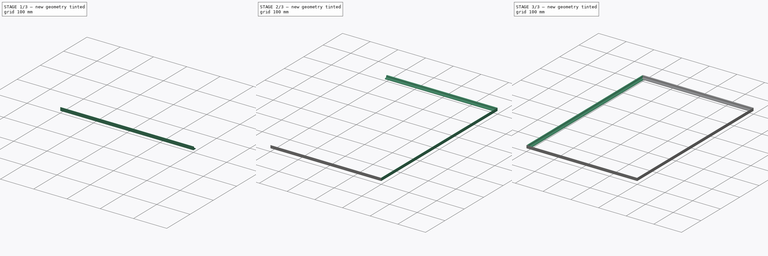
[diagram: build sequence overview — one tinted view per stage of 3, left to right]
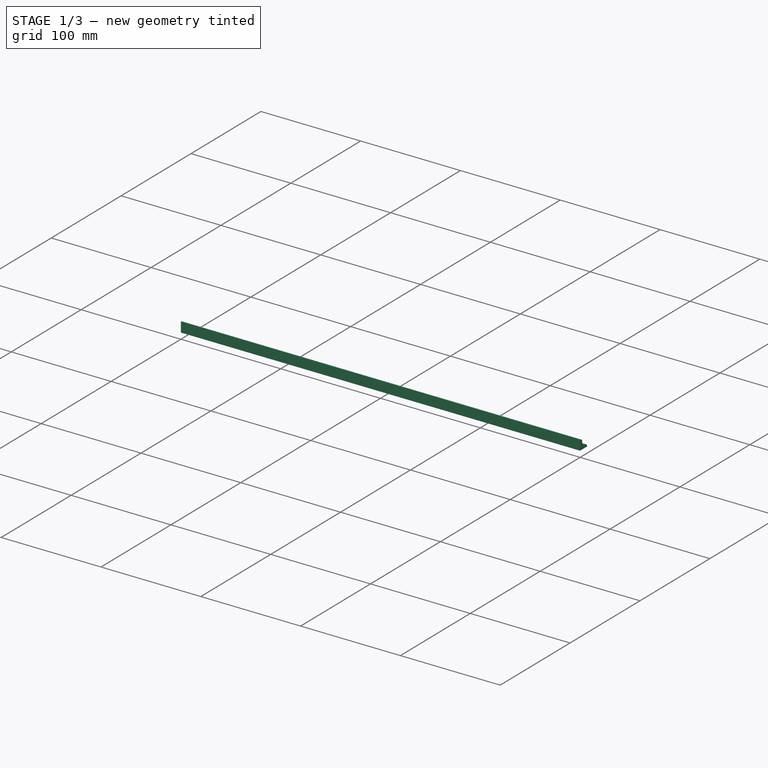
[diagram: stage 1 of 3 — iso view after this stage's code; geometry added in this stage tinted green]
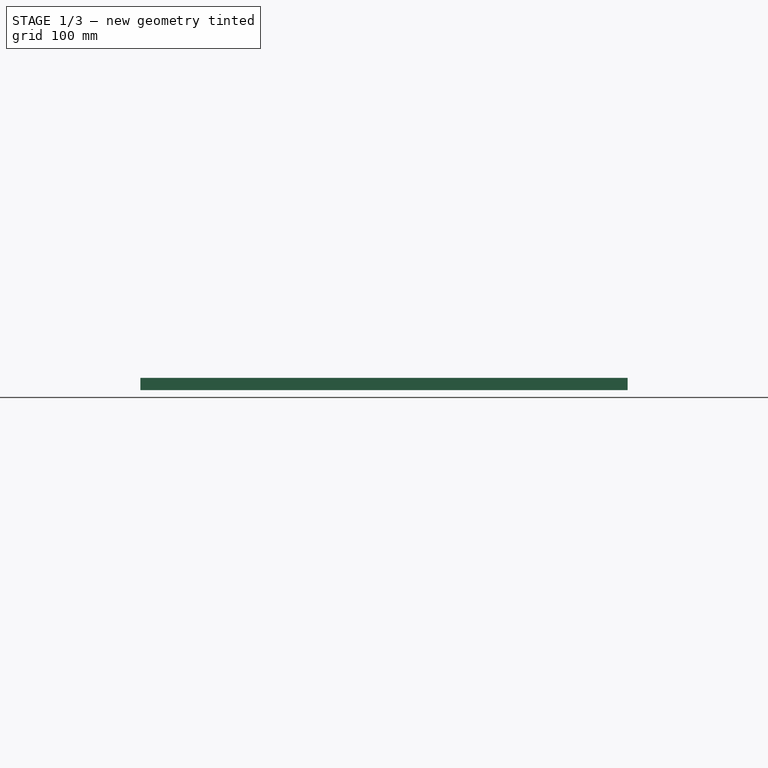
[diagram: stage 1 of 3 — front view after this stage's code; geometry added in this stage tinted green]
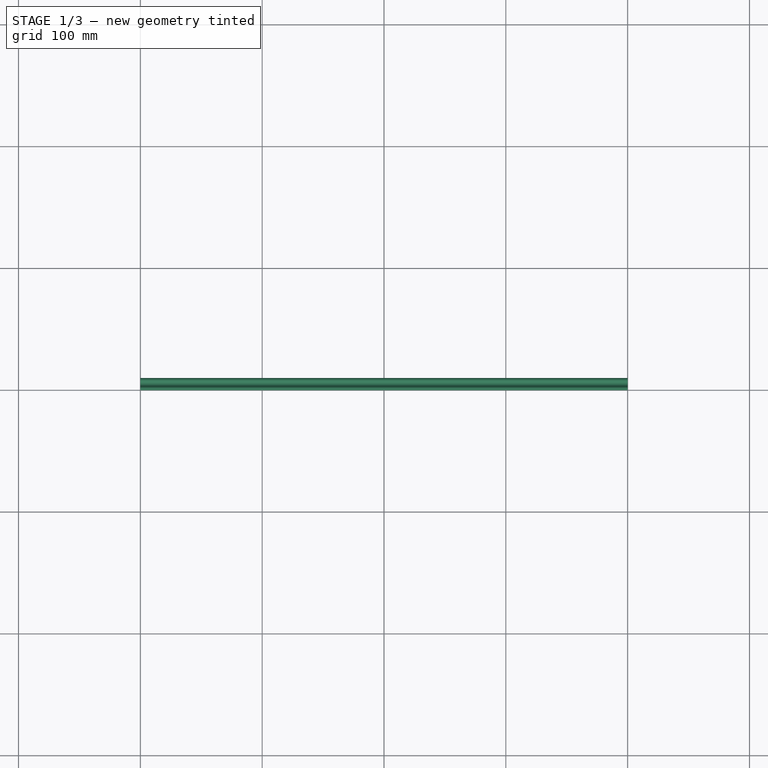
[diagram: stage 1 of 3 — top view after this stage's code; geometry added in this stage tinted green]
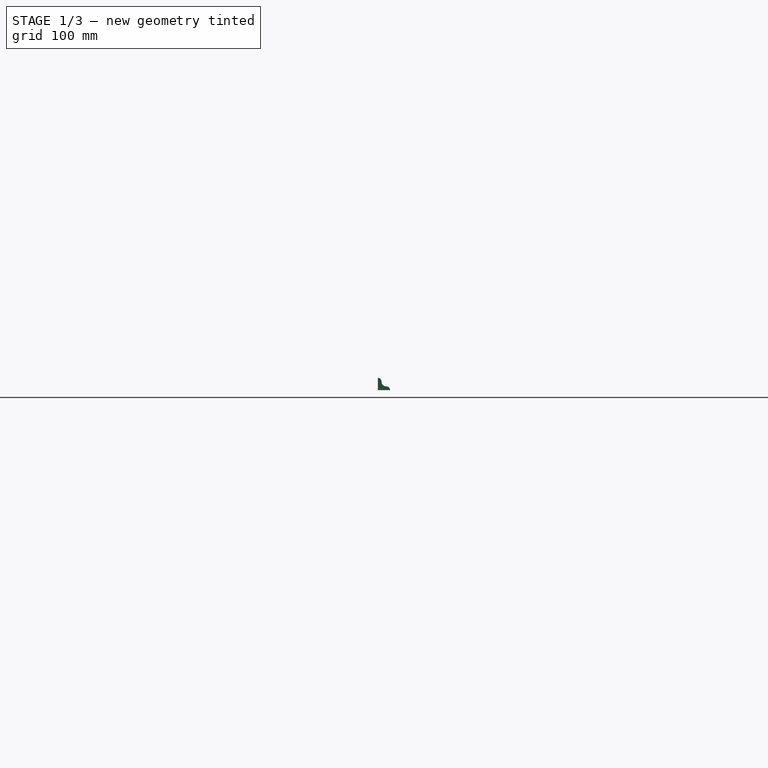
[diagram: stage 1 of 3 — right view after this stage's code; geometry added in this stage tinted green]
FCSTD DOCUMENT  (FreeCAD 0.18.3R)
Label: CuadroCamiseta
License: All rights reserved
LicenseURL: http://en.wikipedia.org/wiki/All_rights_reserved
objects: Part::FeaturePython×4, Sketcher::SketchObject×1, PartDesign::Pad×1, PartDesign::Body×1, Part::MultiFuse×1
note: 9 computed .brp shape members not serialized (recipe doc carries the construction recipe); baked Part::Feature solids carry a one-line shape summary decoded from their .brp

FEATURE [Sketcher::SketchObject] Sketch
  MapMode = 5
  Placement = pos=(0,0,0) rot=(1,0,0;1.5708rad)
  Support = -> [XZ_Plane]
  sketch-geometry (5):
    g0: LineSegment StartX=0 StartY=4e-16 StartZ=0 EndX=10 EndY=0 EndZ=0
    g1: LineSegment StartX=10 StartY=0 StartZ=0 EndX=10 EndY=10 EndZ=0
    g2: ArcOfCircle CenterX=10 CenterY=7 CenterZ=0 NormalX=0 NormalY=0 NormalZ=1 AngleXU=0 Radius=3 StartAngle=1.5708 EndAngle=3.14159
    g3: ArcOfCircle CenterX=3 CenterY=0 CenterZ=0 NormalX=0 NormalY=0 NormalZ=1 AngleXU=0 Radius=3 StartAngle=1.5708 EndAngle=3.14159
    g4: ArcOfCircle CenterX=3 CenterY=7 CenterZ=0 NormalX=0 NormalY=0 NormalZ=1 AngleXU=0 Radius=4 StartAngle=4.71239 EndAngle=6.28319
  constraints (15):
    c: Coincident(g0,g-1)
    c: PointOnObject(g0,g-1)
    c: Vertical(g1)
    c: PointOnObject(g2,g1)
    c: Coincident(g2,g1)
    c: PointOnObject(g3,g0)
    c: Coincident(g3,g0)
    c: Equal(g2,g3)
    c: Equal(g0,g1)
    c: DistanceX(g0,g0) = 10
    c: Coincident(g1,g0)
    c: Tangent(g4,g2) = 1.5708
    c: Tangent(g4,g3) = 1.5708
    c: Angle(g4) = 1.5708
    c: DistanceX(g0,g3) = 3
FEATURE [PartDesign::Pad] Pad
  Length = 1000
  Length2 = 100
  Placement = pos=(0,0,0) rot=(1,0,0;1.5708rad)
  Profile = -> Sketch
  Reversed = true
  Type = 0
FEATURE [Part::FeaturePython] Clone003  label="Pad004"  # Draft clone (typed FeaturePython)
  AttacherType = Attacher::AttachEngine3D
  Fuse = false
  Objects = -> [Pad]
  Placement = pos=(0,10,0) rot=(-0.57735,0.57735,0.57735;4.18879rad)
  Scale = (1,1,0.4)
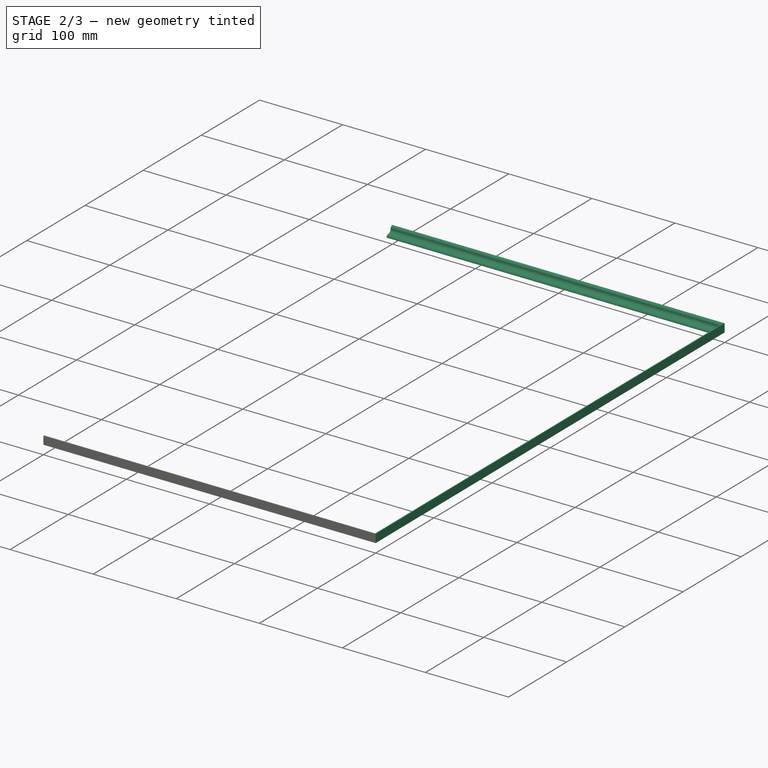
[diagram: stage 2 of 3 — iso view after this stage's code; geometry added in this stage tinted green]
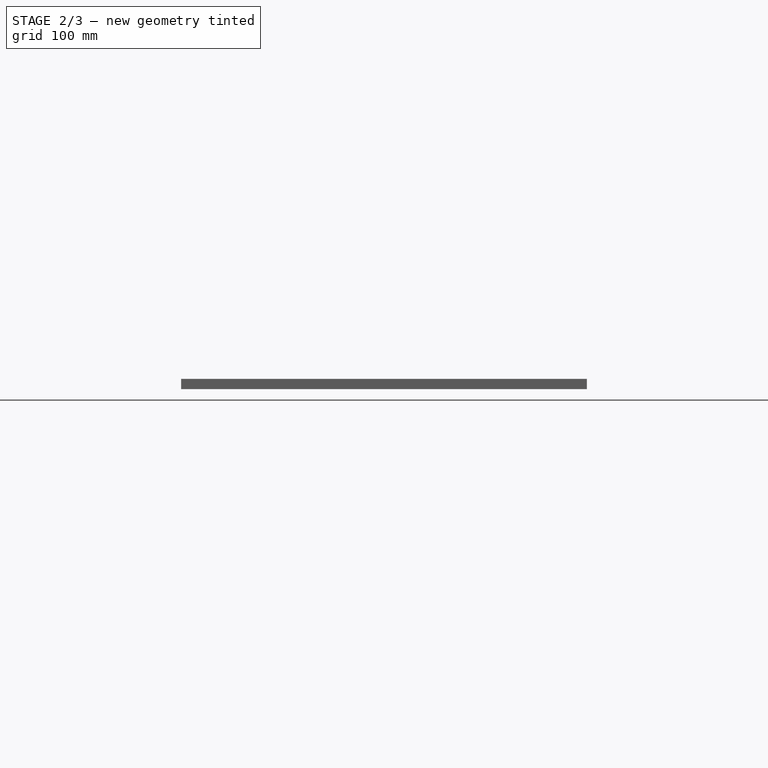
[diagram: stage 2 of 3 — front view after this stage's code; geometry added in this stage tinted green]
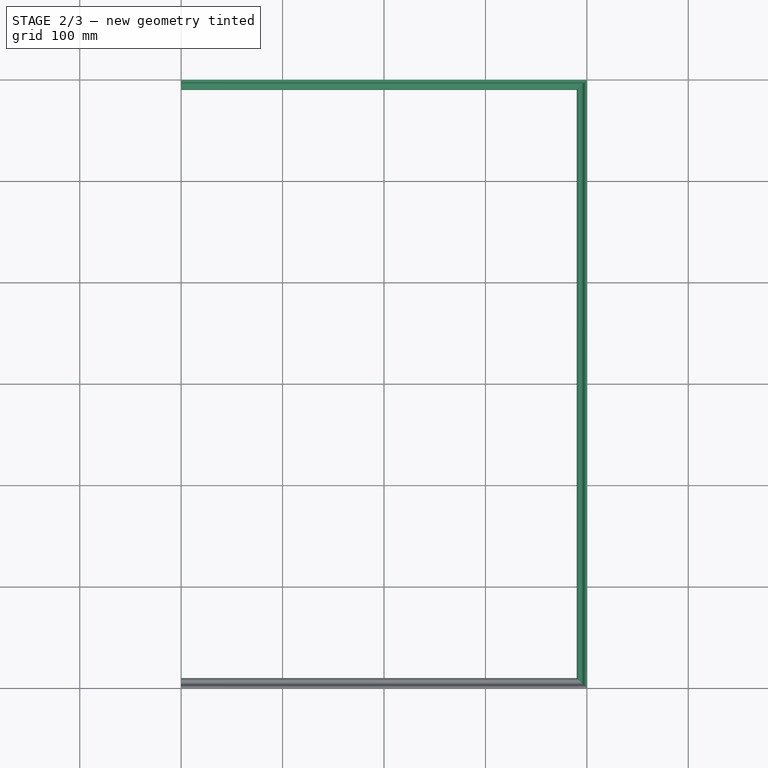
[diagram: stage 2 of 3 — top view after this stage's code; geometry added in this stage tinted green]
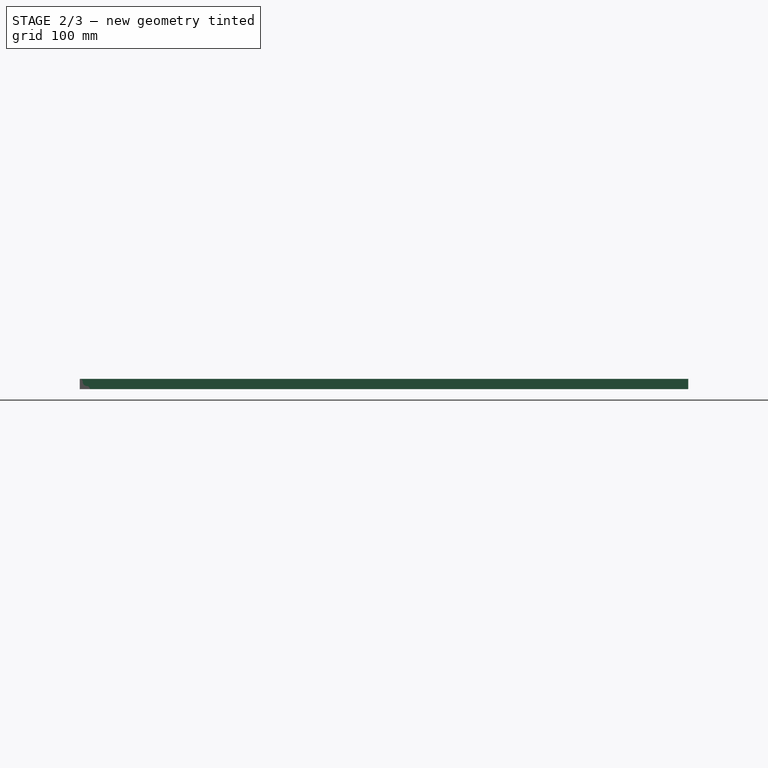
[diagram: stage 2 of 3 — right view after this stage's code; geometry added in this stage tinted green]
FEATURE [Part::FeaturePython] Clone001  label="Pad002"  # Draft clone (typed FeaturePython)
  AttacherType = Attacher::AttachEngine3D
  Fuse = false
  Objects = -> [Pad]
  Placement = pos=(400,600,10) rot=(0.57735,-0.57735,-0.57735;4.18879rad)
  Scale = (1,1,0.6)
FEATURE [Part::FeaturePython] Clone002  label="Pad003"  # Draft clone (typed FeaturePython)
  AttacherType = Attacher::AttachEngine3D
  Fuse = false
  Objects = -> [Pad]
  Placement = pos=(400,590,0) rot=(0.57735,0.57735,0.57735;2.0944rad)
  Scale = (1,1,0.4)
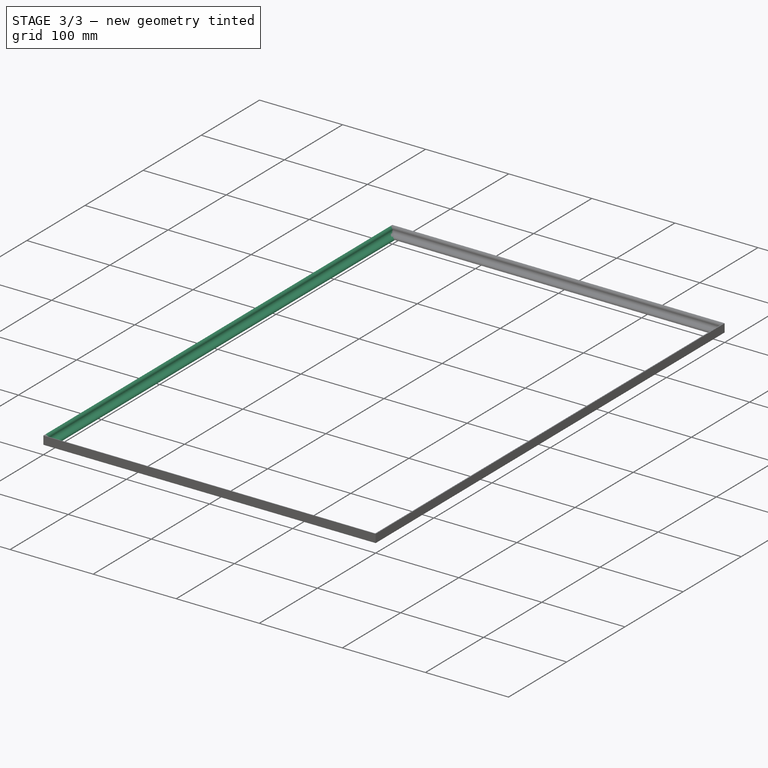
[diagram: stage 3 of 3 — iso view after this stage's code; geometry added in this stage tinted green]
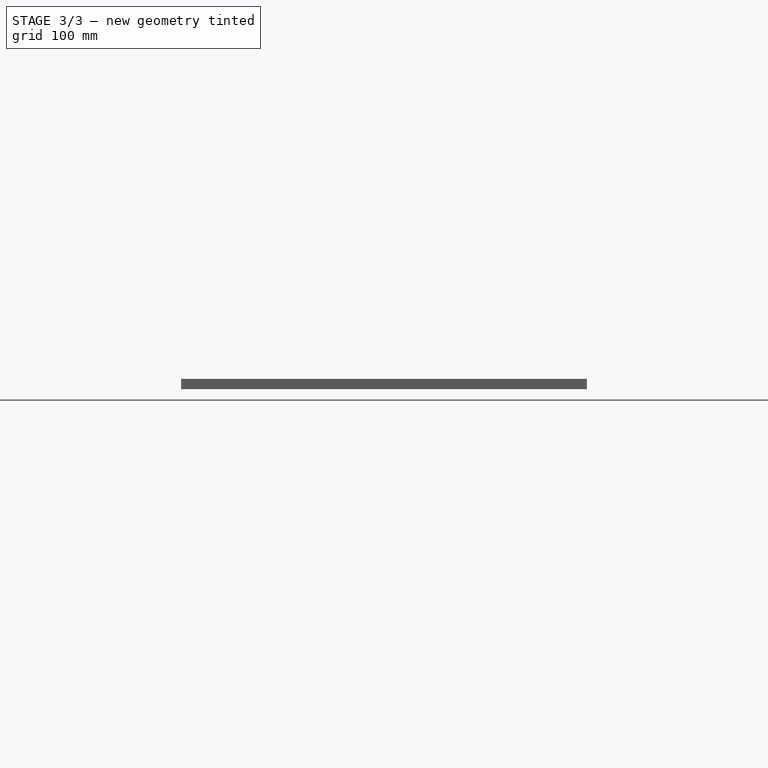
[diagram: stage 3 of 3 — front view after this stage's code; geometry added in this stage tinted green]
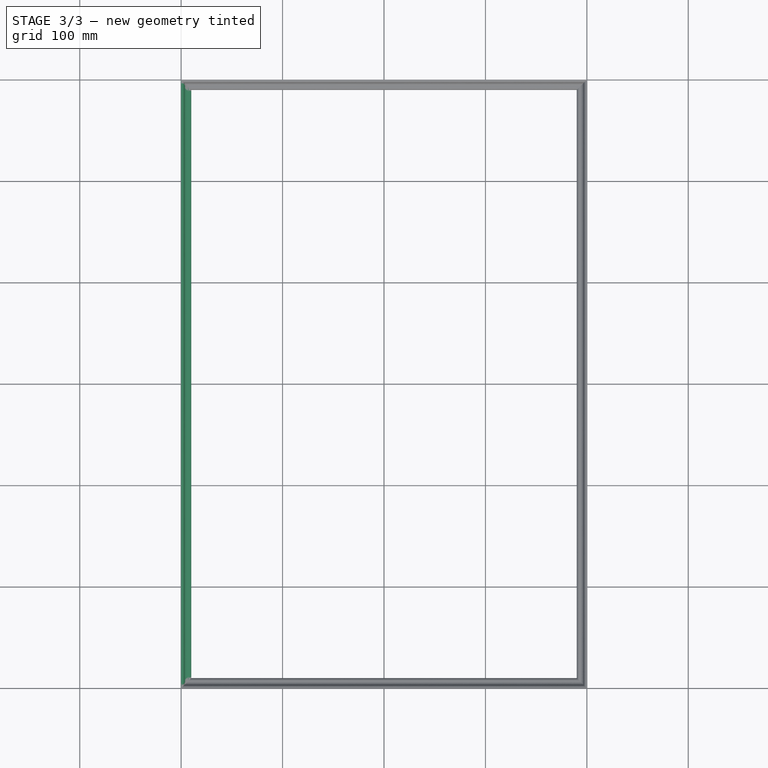
[diagram: stage 3 of 3 — top view after this stage's code; geometry added in this stage tinted green]
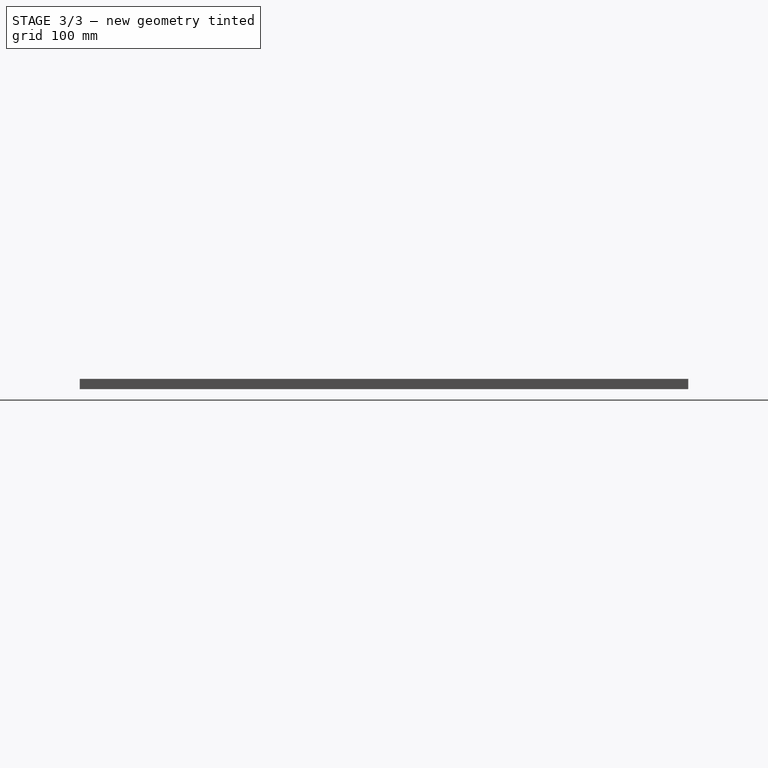
[diagram: stage 3 of 3 — right view after this stage's code; geometry added in this stage tinted green]
FEATURE [PartDesign::Body] Body
  Group = -> [Sketch,Pad]
  Origin = -> Origin
  Tip = -> Pad
FEATURE [Part::FeaturePython] Clone  label="Pad001"  # Draft clone (typed FeaturePython)
  AttacherType = Attacher::AttachEngine3D
  Fuse = false
  Objects = -> [Pad]
  Placement = pos=(0,0,10) rot=(0.57735,0.57735,-0.57735;2.0944rad)
  Scale = (1,1,0.6)
FEATURE [Part::MultiFuse] Fusion
  Shapes = -> [Clone,Clone002,Clone001,Clone003]
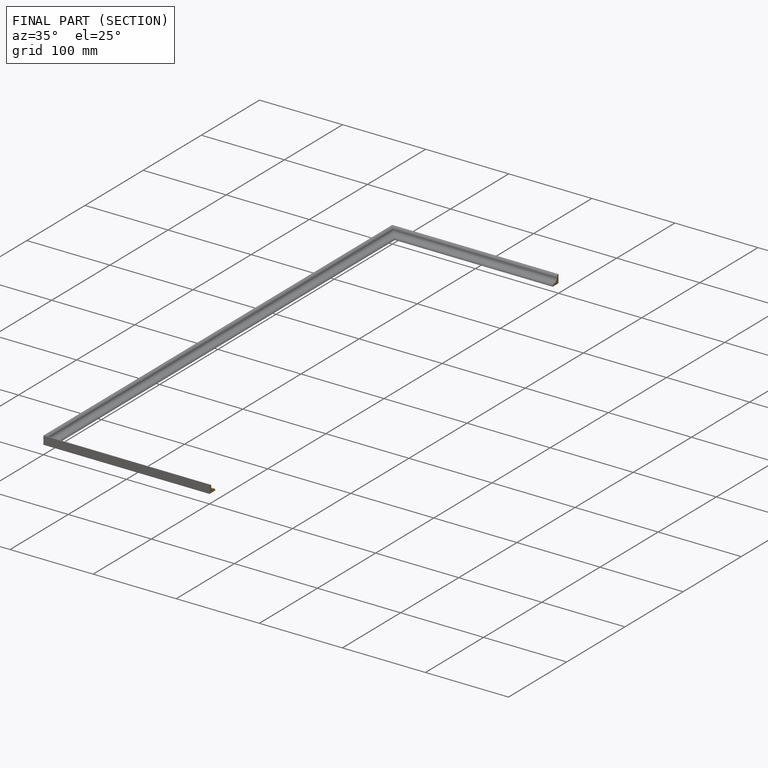
[diagram: finished part — half-section view (interior)]
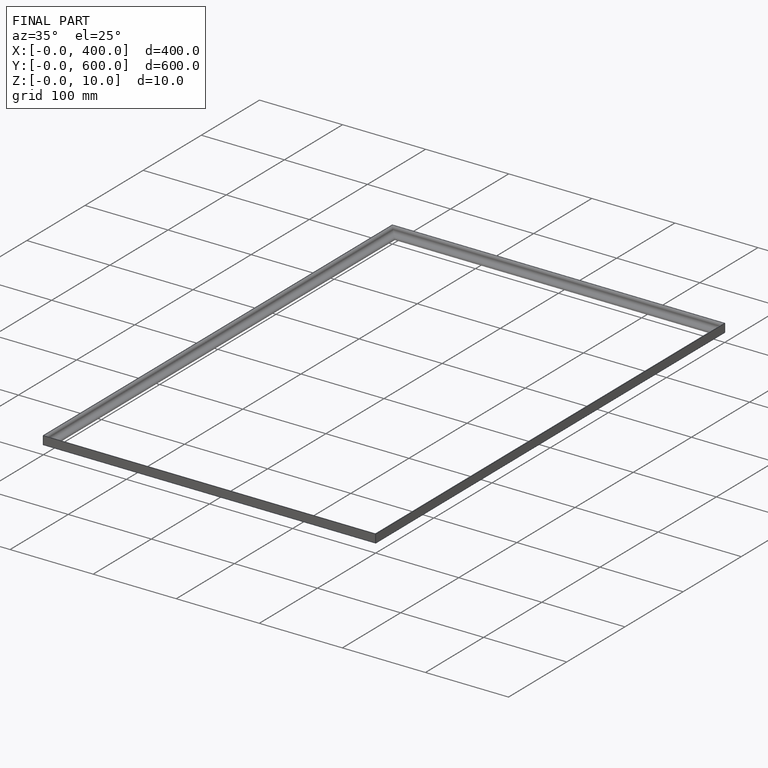
[diagram: finished part — iso view with bounding-box wireframe]
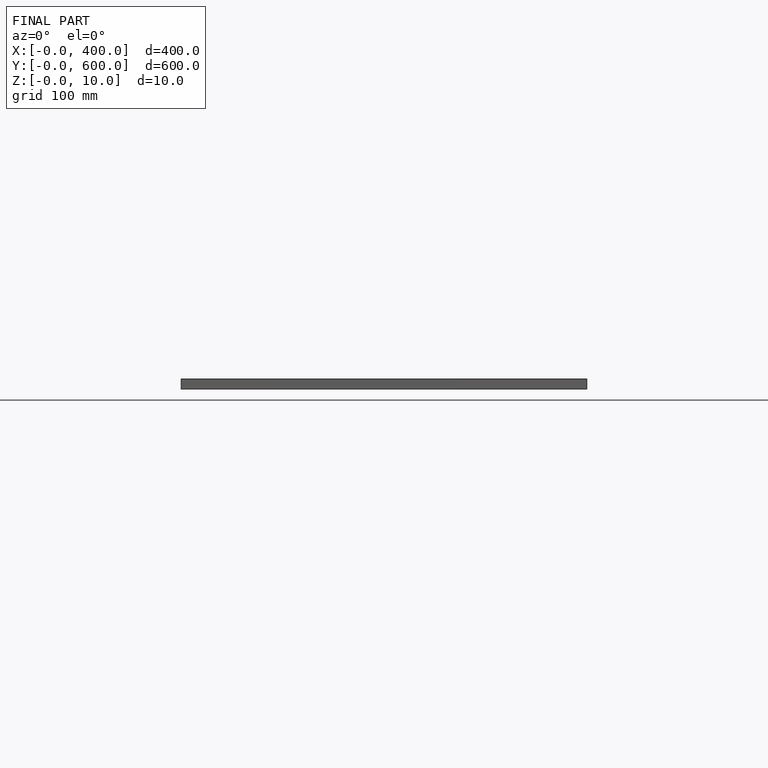
[diagram: finished part — front view with bounding-box wireframe]
